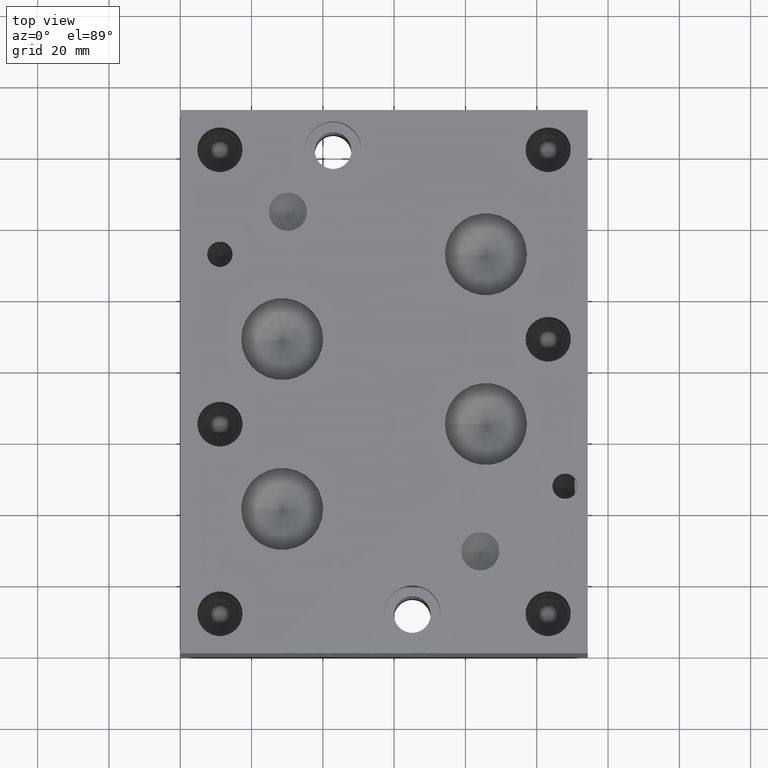
[diagram: clean part render]
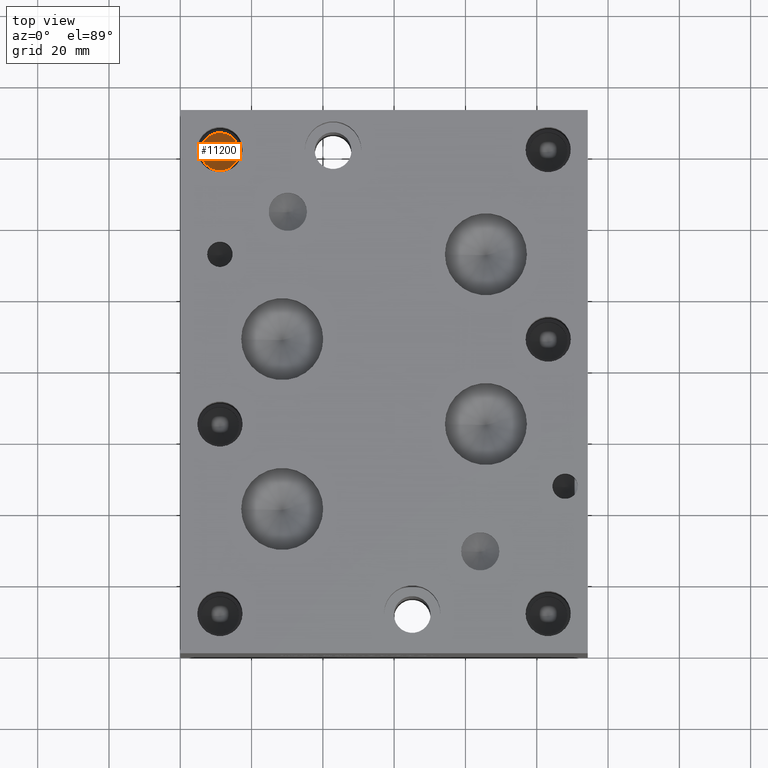
[diagram: same view with one face highlighted and labeled with its STEP entity id]
A machine part, top view. The second image highlights one B-rep face of the part: STEP entity #11200.
In plain terms, the highlighted conical surface has half-angle 60 deg.
Its self-contained STEP definition (entity closure, byte-faithful):
#83=CONICAL_SURFACE('',#11773,2.6797,1.0471975511966);
#227=CIRCLE('',#11774,5.3594);
#228=CIRCLE('',#11775,5.3594);
#1240=FACE_OUTER_BOUND('',#1880,.T.);
#1880=EDGE_LOOP('',(#9906,#9907,#9908,#9909));
#2978=LINE('',#19122,#4046);
#4046=VECTOR('',#13958,2.6797);
#5388=VERTEX_POINT('',#19118);
#5389=VERTEX_POINT('',#19119);
#5390=VERTEX_POINT('',#19121);
#6919=EDGE_CURVE('',#5388,#5389,#227,.T.);
#6920=EDGE_CURVE('',#5389,#5390,#2978,.T.);
#6921=EDGE_CURVE('',#5389,#5388,#228,.T.);
#9906=ORIENTED_EDGE('',*,*,#6919,.T.);
#9907=ORIENTED_EDGE('',*,*,#6920,.T.);
#9908=ORIENTED_EDGE('',*,*,#6920,.F.);
#9909=ORIENTED_EDGE('',*,*,#6921,.T.);
#11200=ADVANCED_FACE('',(#1240),#83,.F.);
#11773=AXIS2_PLACEMENT_3D('',#19117,#13954,#13955);
#11774=AXIS2_PLACEMENT_3D('',#19120,#13956,#13957);
#11775=AXIS2_PLACEMENT_3D('',#19123,#13959,#13960);
#13954=DIRECTION('center_axis',(0.,0.,1.));
#13955=DIRECTION('ref_axis',(1.,0.,0.));
#13956=DIRECTION('center_axis',(0.,0.,1.));
#13957=DIRECTION('ref_axis',(1.,0.,0.));
#13958=DIRECTION('',(0.866025403784439,1.06057523872491E-16,-0.5));
#13959=DIRECTION('center_axis',(0.,0.,1.));
#13960=DIRECTION('ref_axis',(1.,0.,0.));
#19117=CARTESIAN_POINT('Origin',(11.0998,141.2748,39.6516744836526));
#19118=CARTESIAN_POINT('',(16.4592,141.2748,41.1988));
#19119=CARTESIAN_POINT('',(5.7404,141.2748,41.1988));
#19120=CARTESIAN_POINT('Origin',(11.0998,141.2748,41.1988));
#19121=CARTESIAN_POINT('',(11.0998,141.2748,38.1045489673051));
#19122=CARTESIAN_POINT('',(8.4201,141.2748,39.6516744836526));
#19123=CARTESIAN_POINT('Origin',(11.0998,141.2748,41.1988));